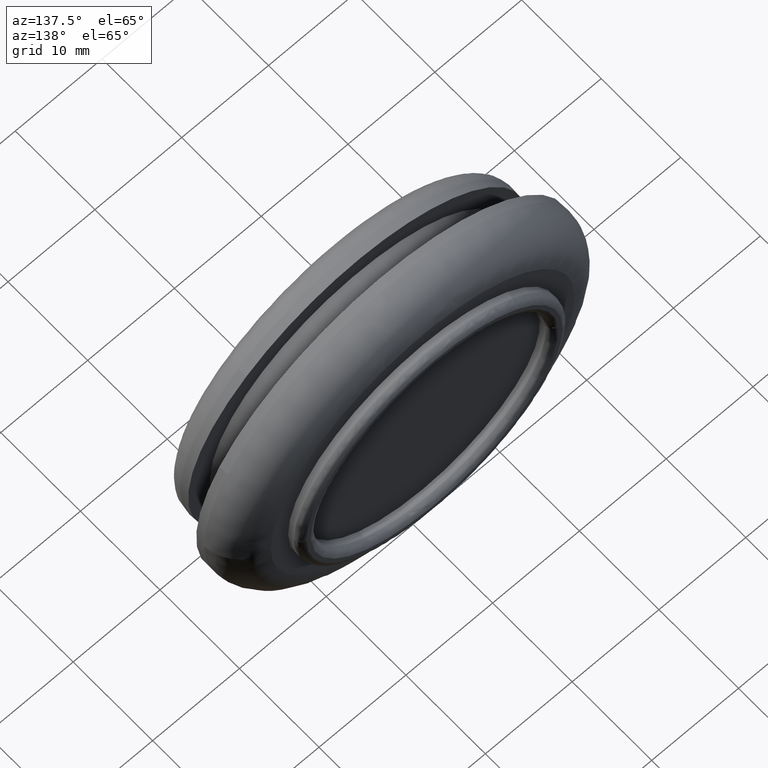
[diagram: clean part render]
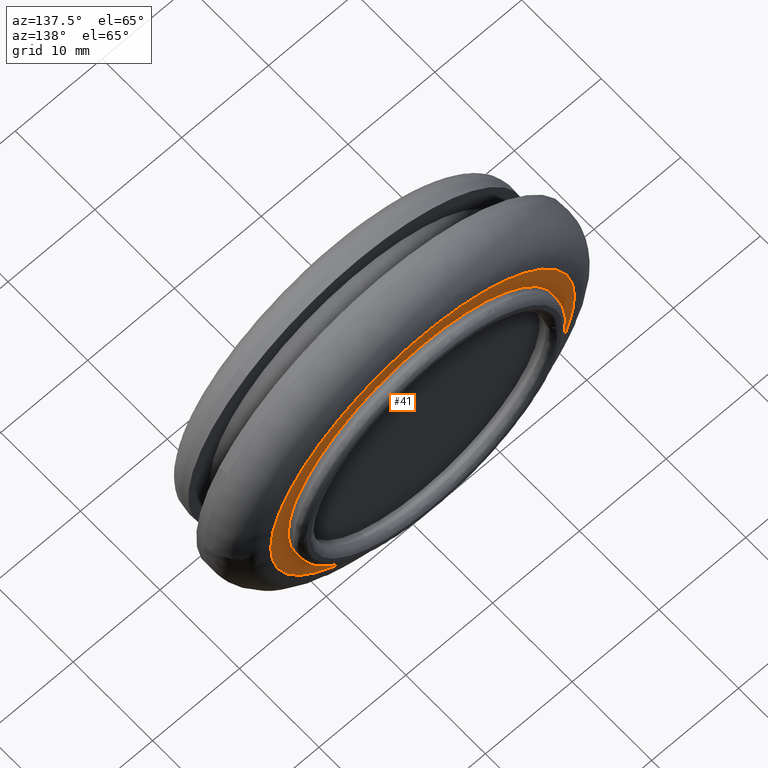
[diagram: same view with one face highlighted and labeled with its STEP entity id]
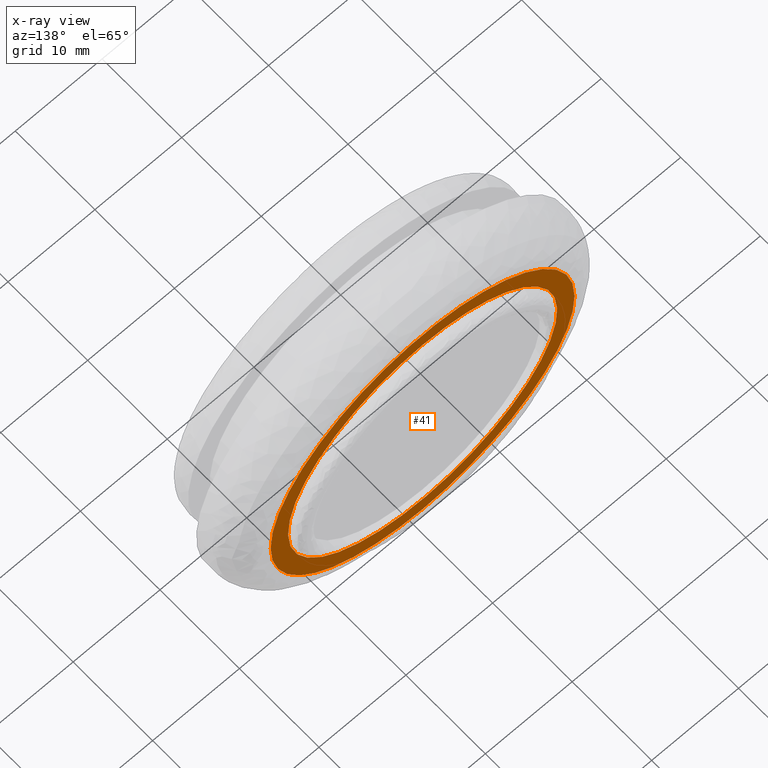
[diagram: x-ray of the same camera — body ghosted, the highlighted face saturated]
A machine part, auxiliary view. The second image highlights one B-rep face of the part: STEP entity #41.
The next image is the same camera in x-ray: the body ghosted, the highlighted face saturated — about 0% of this face is hidden behind the body in this view.
In plain terms, the highlighted planar face has unit normal (0, -1, 0).
Its self-contained STEP definition (entity closure, byte-faithful):
#41=ADVANCED_FACE('',(#79,#80),#78,.F.);
#78=PLANE('',#351);
#79=FACE_OUTER_BOUND('',#352,.T.);
#80=FACE_BOUND('',#353,.T.);
#348=CARTESIAN_POINT('',(-3.63730669594E+001,1.12000000000E+001,4.02500000003E+001));
#349=DIRECTION('',(0.00000000000E+000,-1.00000000000E+000,0.00000000000E+000));
#350=DIRECTION('',(0.00000000000E+000,0.00000000000E+000,-1.00000000000E+000));
#351=AXIS2_PLACEMENT_3D('',#348,#349,#350);
#352=EDGE_LOOP('',(#656,#657,#658));
#353=EDGE_LOOP('',(#659,#660,#661));
#656=ORIENTED_EDGE('',*,*,#820,.F.);
#657=ORIENTED_EDGE('',*,*,#821,.F.);
#658=ORIENTED_EDGE('',*,*,#822,.F.);
#659=ORIENTED_EDGE('',*,*,#823,.T.);
#660=ORIENTED_EDGE('',*,*,#824,.T.);
#661=ORIENTED_EDGE('',*,*,#825,.T.);
#820=EDGE_CURVE('',#938,#939,#940,.T.);
#821=EDGE_CURVE('',#946,#938,#947,.T.);
#822=EDGE_CURVE('',#939,#946,#953,.T.);
#823=EDGE_CURVE('',#959,#960,#961,.T.);
#824=EDGE_CURVE('',#960,#967,#968,.T.);
#825=EDGE_CURVE('',#967,#959,#974,.T.);
#938=VERTEX_POINT('',#1480);
#939=VERTEX_POINT('',#1481);
#940=CIRCLE('',#1485,1.75000000002E+001);
#946=VERTEX_POINT('',#1486);
#947=CIRCLE('',#1490,1.75000000002E+001);
#953=CIRCLE('',#1494,1.75000000002E+001);
#959=VERTEX_POINT('',#1495);
#960=VERTEX_POINT('',#1496);
#961=CIRCLE('',#1500,1.55000000000E+001);
#967=VERTEX_POINT('',#1501);
#968=CIRCLE('',#1505,1.55000000000E+001);
#974=CIRCLE('',#1509,1.55000000000E+001);
#1480=CARTESIAN_POINT('',(-1.75000000003E+001,1.12000000000E+001,-4.06054056090E-013));
#1481=CARTESIAN_POINT('',(-8.88178419700E-016,1.12000000000E+001,-1.75000000004E+001));
#1482=CARTESIAN_POINT('',(-9.59623491781E-011,1.12000000000E+001,-2.19081641717E-010));
#1483=DIRECTION('',(4.30252329275E-016,-1.00000000000E+000,3.24368560896E-015));
#1484=DIRECTION('',(5.48387724120E-012,-3.24368560895E-015,-1.00000000000E+000));
#1485=AXIS2_PLACEMENT_3D('',#1482,#1483,#1484);
#1486=CARTESIAN_POINT('',(1.74999999059E+001,1.12000000000E+001,1.81623583468E-003));
#1487=CARTESIAN_POINT('',(-9.59623491781E-011,1.12000000000E+001,-2.19081641717E-010));
#1488=DIRECTION('',(4.30252329275E-016,-1.00000000000E+000,3.24368560896E-015));
#1489=DIRECTION('',(5.48387724120E-012,-3.24368560895E-015,-1.00000000000E+000));
#1490=AXIS2_PLACEMENT_3D('',#1487,#1488,#1489);
#1491=CARTESIAN_POINT('',(-9.59623491781E-011,1.12000000000E+001,-2.19081641717E-010));
#1492=DIRECTION('',(4.30252329275E-016,-1.00000000000E+000,3.24368560896E-015));
#1493=DIRECTION('',(5.48387724120E-012,-3.24368560895E-015,-1.00000000000E+000));
#1494=AXIS2_PLACEMENT_3D('',#1491,#1492,#1493);
#1495=CARTESIAN_POINT('',(1.00996142872E-015,1.12000000000E+001,1.55000000000E+001));
#1496=CARTESIAN_POINT('',(-9.65159657339E+000,1.12000000000E+001,1.21283421614E+001));
#1497=CARTESIAN_POINT('',(1.33226762955E-014,1.12000000000E+001,-1.77635683940E-014));
#1498=DIRECTION('',(0.00000000000E+000,-1.00000000000E+000,-0.00000000000E+000));
#1499=DIRECTION('',(-9.16829336465E-016,-0.00000000000E+000,1.00000000000E+000));
#1500=AXIS2_PLACEMENT_3D('',#1497,#1498,#1499);
#1501=CARTESIAN_POINT('',(9.64897686762E+000,1.12000000000E+001,-1.21304264314E+001));
#1502=CARTESIAN_POINT('',(1.33226762955E-014,1.12000000000E+001,-1.77635683940E-014));
#1503=DIRECTION('',(0.00000000000E+000,-1.00000000000E+000,-0.00000000000E+000));
#1504=DIRECTION('',(-9.16829336465E-016,-0.00000000000E+000,1.00000000000E+000));
#1505=AXIS2_PLACEMENT_3D('',#1502,#1503,#1504);
#1506=CARTESIAN_POINT('',(1.33226762955E-014,1.12000000000E+001,-1.77635683940E-014));
#1507=DIRECTION('',(0.00000000000E+000,-1.00000000000E+000,-0.00000000000E+000));
#1508=DIRECTION('',(-9.16829336465E-016,-0.00000000000E+000,1.00000000000E+000));
#1509=AXIS2_PLACEMENT_3D('',#1506,#1507,#1508);